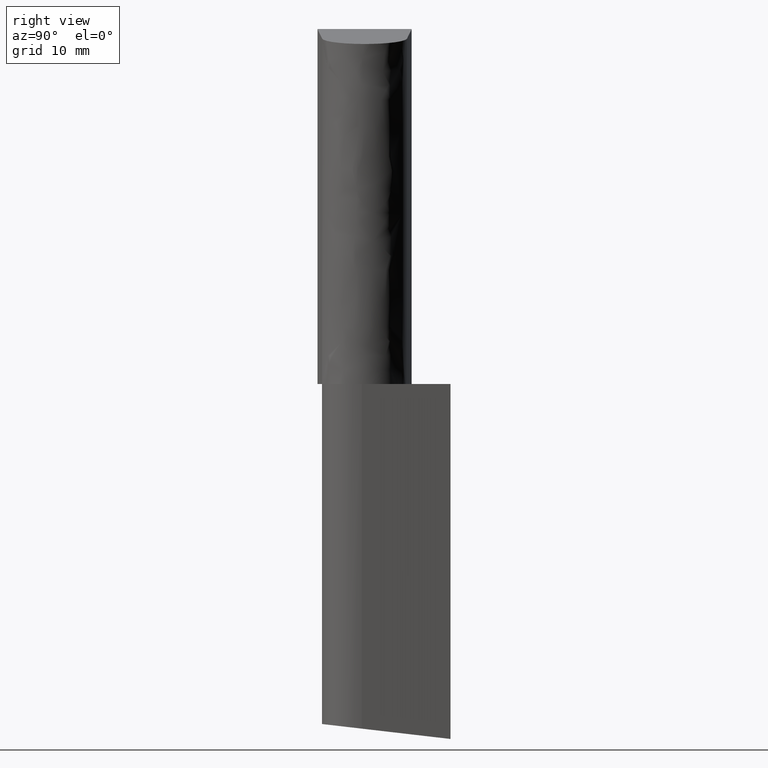
[diagram: clean part render]
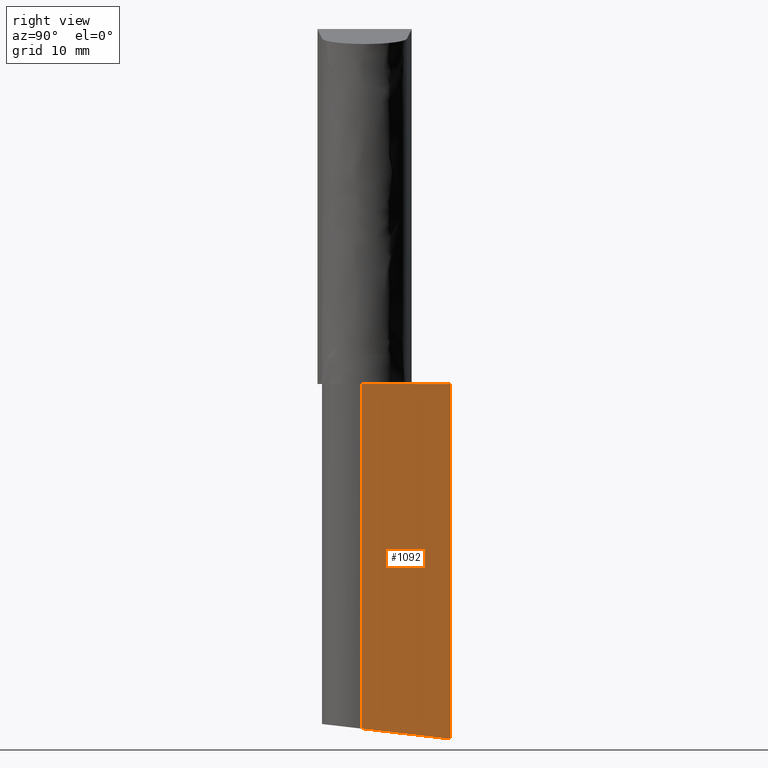
[diagram: same view with one face highlighted and labeled with its STEP entity id]
A machine part, right view. The second image highlights one B-rep face of the part: STEP entity #1092.
In plain terms, the highlighted face is a freeform B-spline surface patch.
Its self-contained STEP definition (entity closure, byte-faithful):
#1024=CARTESIAN_POINT('',(6.450000306358669,11.500000546220720,0.0));
#1025=VERTEX_POINT('',#1024);
#1033=CARTESIAN_POINT('',(5.688290843953990,-0.365171686983634,1.379671189907754));
#1034=VERTEX_POINT('',#1033);
#1035=CARTESIAN_POINT('',(5.688290843953990,-0.365171686983634,1.379671189907754));
#1036=CARTESIAN_POINT('',(6.450000306358669,11.500000546220720,0.0));
#1037=QUASI_UNIFORM_CURVE('',1,(#1035,#1036),.UNSPECIFIED.,.F.,.U.);
#1038=EDGE_CURVE('',#1034,#1025,#1037,.T.);
#1065=CARTESIAN_POINT('',(6.488047721130884,12.092666321799269,-2.372625020629414));
#1066=CARTESIAN_POINT('',(5.650243435991900,-0.957837356479269,-2.372625020629414));
#1067=CARTESIAN_POINT('',(6.488047721130884,12.092666321799269,49.872628550807669));
#1068=CARTESIAN_POINT('',(5.650243435991900,-0.957837356479268,49.872628550807669));
#1069=B_SPLINE_SURFACE_WITH_KNOTS('',1,1,((#1065,#1067),(#1066,#1068)),.UNSPECIFIED.,.F.,.F.,.U.,(2,2),(2,2),(0.0,13.077368323824141),(0.0,52.245253571437082),.UNSPECIFIED.);
#1070=CARTESIAN_POINT('',(5.688290843953990,-0.365171686983622,47.500002256128901));
#1071=VERTEX_POINT('',#1070);
#1072=CARTESIAN_POINT('',(5.688290843953990,-0.365171686983622,47.500002256128901));
#1073=CARTESIAN_POINT('',(5.688290843953990,-0.365171686983634,1.379671189907754));
#1074=QUASI_UNIFORM_CURVE('',1,(#1072,#1073),.UNSPECIFIED.,.F.,.U.);
#1075=EDGE_CURVE('',#1071,#1034,#1074,.T.);
#1076=ORIENTED_EDGE('',*,*,#1075,.T.);
#1077=ORIENTED_EDGE('',*,*,#1038,.T.);
#1078=CARTESIAN_POINT('',(6.450000306358580,11.500000546220560,47.500002256128901));
#1079=VERTEX_POINT('',#1078);
#1080=CARTESIAN_POINT('',(6.450000306358580,11.500000546220560,47.500002256128901));
#1081=CARTESIAN_POINT('',(6.450000306358669,11.500000546220720,0.0));
#1082=QUASI_UNIFORM_CURVE('',1,(#1080,#1081),.UNSPECIFIED.,.F.,.U.);
#1083=EDGE_CURVE('',#1079,#1025,#1082,.T.);
#1084=ORIENTED_EDGE('',*,*,#1083,.F.);
#1085=CARTESIAN_POINT('',(5.688290843953990,-0.365171686983622,47.500002256128901));
#1086=CARTESIAN_POINT('',(6.450000306358580,11.500000546220560,47.500002256128901));
#1087=QUASI_UNIFORM_CURVE('',1,(#1085,#1086),.UNSPECIFIED.,.F.,.U.);
#1088=EDGE_CURVE('',#1071,#1079,#1087,.T.);
#1089=ORIENTED_EDGE('',*,*,#1088,.F.);
#1090=EDGE_LOOP('',(#1076,#1077,#1084,#1089));
#1091=FACE_OUTER_BOUND('',#1090,.T.);
#1092=ADVANCED_FACE('',(#1091),#1069,.F.);